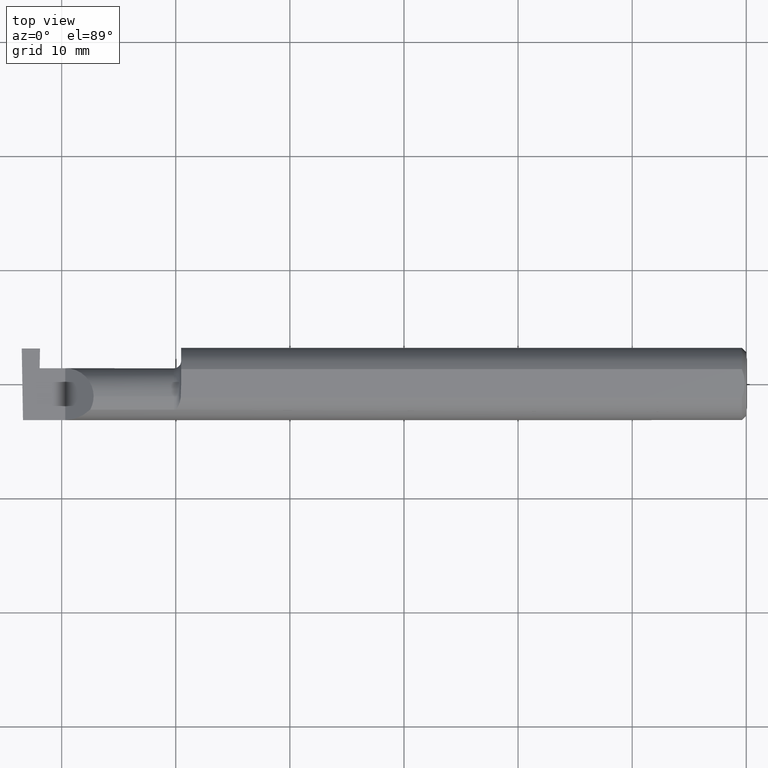
[diagram: clean part render]
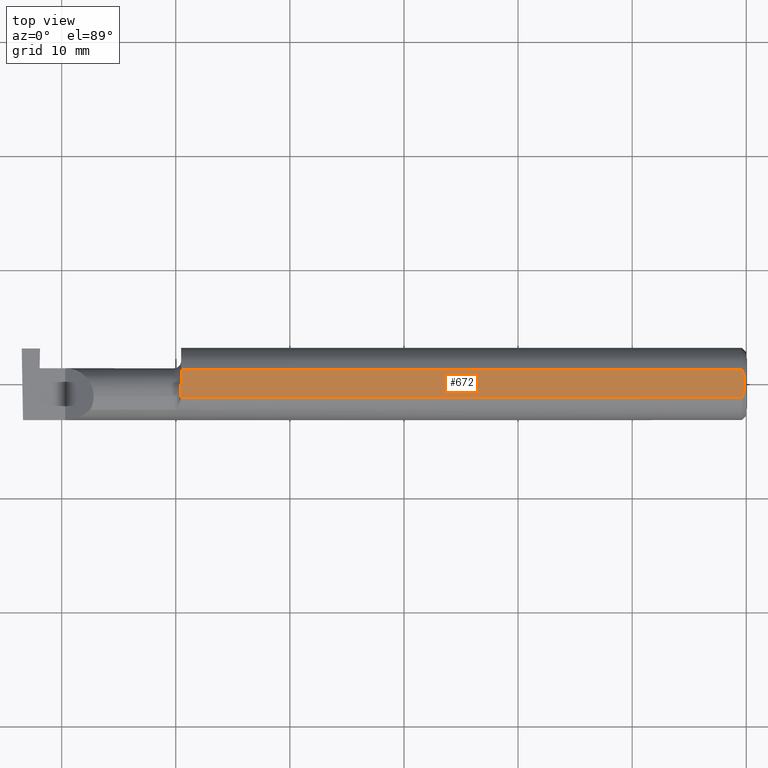
[diagram: same view with one face highlighted and labeled with its STEP entity id]
A machine part, top view. The second image highlights one B-rep face of the part: STEP entity #672.
In plain terms, the highlighted planar face has unit normal (0, 0, 1).
Its self-contained STEP definition (entity closure, byte-faithful):
#8 = CARTESIAN_POINT ( 'NONE',  ( -0.01499999999999987454, 0.04895916665957496944, 0.1148500000000000076 ) ) ;
#46 = PLANE ( 'NONE',  #467 ) ;
#77 = ORIENTED_EDGE ( 'NONE', *, *, #780, .F. ) ;
#82 = VERTEX_POINT ( 'NONE', #218 ) ;
#87 = DIRECTION ( 'NONE',  ( 0.000000000000000000, 0.000000000000000000, 1.000000000000000000 ) ) ;
#95 = LINE ( 'NONE', #588, #288 ) ;
#109 = CARTESIAN_POINT ( 'NONE',  ( -0.004999999999999990563, -1.358826068685392540E-17, 0.1148500000000000076 ) ) ;
#113 = EDGE_CURVE ( 'NONE', #82, #358, #750, .T. ) ;
#120 = VERTEX_POINT ( 'NONE', #8 ) ;
#124 = VERTEX_POINT ( 'NONE', #483 ) ;
#127 = CARTESIAN_POINT ( 'NONE',  ( -0.005947935873631213927, 0.01679708999422687907, 0.1148500000000000076 ) ) ;
#135 = VERTEX_POINT ( 'NONE', #225 ) ;
#145 = CARTESIAN_POINT ( 'NONE',  ( -1.950400391910593223, -0.01449986171080064334, 0.1148500000000000076 ) ) ;
#151 = CARTESIAN_POINT ( 'NONE',  ( -0.004999999999999963675, -0.008410771716546847077, 0.1148500000000000215 ) ) ;
#168 = CARTESIAN_POINT ( 'NONE',  ( -1.951362484150213072, -0.04555293709188903972, 0.1148500000000000076 ) ) ;
#177 = CARTESIAN_POINT ( 'NONE',  ( -1.950000000000000178, 0.0001781444078671173391, 0.1148500000000000076 ) ) ;
#189 = CARTESIAN_POINT ( 'NONE',  ( 0.000000000000000000, -0.04895916665957456698, 0.1148500000000000076 ) ) ;
#194 = ORIENTED_EDGE ( 'NONE', *, *, #262, .F. ) ;
#198 = VERTEX_POINT ( 'NONE', #109 ) ;
#214 = CARTESIAN_POINT ( 'NONE',  ( -1.950000000000000178, -0.1248500000000000165, 0.1148500000000000076 ) ) ;
#218 = CARTESIAN_POINT ( 'NONE',  ( -1.951365755776839572, -0.04385000000000001397, 0.1148500000000000076 ) ) ;
#225 = CARTESIAN_POINT ( 'NONE',  ( -1.951326891871145719, -0.04895916665872705742, 0.1148500000000000076 ) ) ;
#238 = B_SPLINE_CURVE_WITH_KNOTS ( 'NONE', 3,
 ( #446, #151, #268, #501, #265, #491 ),
 .UNSPECIFIED., .F., .F.,
 ( 4, 2, 4 ),
 ( 0.003658435455108829341, 0.004289327297787135992, 0.004920219140465443078 ),
 .UNSPECIFIED. ) ;
#245 = CARTESIAN_POINT ( 'NONE',  ( -0.01499999999999987454, 0.04895916665957496944, 0.1148500000000000076 ) ) ;
#259 = ORIENTED_EDGE ( 'NONE', *, *, #414, .F. ) ;
#262 = EDGE_CURVE ( 'NONE', #124, #135, #782, .T. ) ;
#265 = CARTESIAN_POINT ( 'NONE',  ( -0.01195732443765547791, -0.04120008761723505802, 0.1148500000000000076 ) ) ;
#268 = CARTESIAN_POINT ( 'NONE',  ( -0.005932194444709712640, -0.01671525318617311795, 0.1148499999999999938 ) ) ;
#276 = CARTESIAN_POINT ( 'NONE',  ( -1.951365755776839572, -0.04385000000000001397, 0.1148500000000000076 ) ) ;
#288 = VECTOR ( 'NONE', #458, 39.37007874015748143 ) ;
#296 = CARTESIAN_POINT ( 'NONE',  ( -0.01193974418109659125, 0.04115525648180411861, 0.1148500000000000215 ) ) ;
#300 = EDGE_LOOP ( 'NONE', ( #194, #259, #77, #743, #310, #604, #754 ) ) ;
#307 = CARTESIAN_POINT ( 'NONE',  ( -0.004999999999999962808, 0.008410227287019789166, 0.1148500000000000076 ) ) ;
#310 = ORIENTED_EDGE ( 'NONE', *, *, #701, .F. ) ;
#314 = VERTEX_POINT ( 'NONE', #720 ) ;
#332 = CARTESIAN_POINT ( 'NONE',  ( -1.951349474474288082, -0.04725615793095110095, 0.1148499999999999938 ) ) ;
#358 = VERTEX_POINT ( 'NONE', #177 ) ;
#364 = DIRECTION ( 'NONE',  ( -1.000000000000000000, 0.000000000000000000, 0.000000000000000000 ) ) ;
#401 = CARTESIAN_POINT ( 'NONE',  ( -1.951326891871145719, -0.04895916665872705742, 0.1148500000000000076 ) ) ;
#414 = EDGE_CURVE ( 'NONE', #198, #124, #238, .T. ) ;
#416 = CARTESIAN_POINT ( 'NONE',  ( -1.950000000000000178, 0.0001781444078671173391, 0.1148500000000000076 ) ) ;
#424 = CARTESIAN_POINT ( 'NONE',  ( -0.009410502401328735278, 0.03310661131402437007, 0.1148499999999999938 ) ) ;
#446 = CARTESIAN_POINT ( 'NONE',  ( -0.004999999999999990563, -1.358826068685392540E-17, 0.1148500000000000076 ) ) ;
#448 = VECTOR ( 'NONE', #490, 39.37007874015748143 ) ;
#458 = DIRECTION ( 'NONE',  ( 1.000000000000000000, -0.000000000000000000, -0.000000000000000000 ) ) ;
#467 = AXIS2_PLACEMENT_3D ( 'NONE', #560, #87, #752 ) ;
#478 = B_SPLINE_CURVE_WITH_KNOTS ( 'NONE', 3,
 ( #245, #296, #424, #127, #307, #532 ),
 .UNSPECIFIED., .F., .F.,
 ( 4, 2, 4 ),
 ( 0.002396733445051246140, 0.003027584450080037740, 0.003658435455108829341 ),
 .UNSPECIFIED. ) ;
#483 = CARTESIAN_POINT ( 'NONE',  ( -0.01499999999999999944, -0.04895916665957456698, 0.1148500000000000076 ) ) ;
#490 = DIRECTION ( 'NONE',  ( 0.000000000000000000, 1.000000000000000000, 0.000000000000000000 ) ) ;
#491 = CARTESIAN_POINT ( 'NONE',  ( -0.01499999999999999944, -0.04895916665957456698, 0.1148500000000000076 ) ) ;
#501 = CARTESIAN_POINT ( 'NONE',  ( -0.009415874254822409126, -0.03313958207962817981, 0.1148500000000000076 ) ) ;
#504 = LINE ( 'NONE', #214, #448 ) ;
#511 = CARTESIAN_POINT ( 'NONE',  ( -1.951365755776839572, -0.03650543323727820089, 0.1148500000000000215 ) ) ;
#532 = CARTESIAN_POINT ( 'NONE',  ( -0.004999999999999990563, -1.358826068685392540E-17, 0.1148500000000000076 ) ) ;
#546 = CARTESIAN_POINT ( 'NONE',  ( -1.951090261609496279, -0.02916889382056607125, 0.1148499999999999938 ) ) ;
#549 = EDGE_CURVE ( 'NONE', #314, #120, #95, .T. ) ;
#560 = CARTESIAN_POINT ( 'NONE',  ( -2.500000000000000000, -0.1248500000000000165, 0.1148500000000000076 ) ) ;
#570 = EDGE_CURVE ( 'NONE', #135, #82, #653, .T. ) ;
#588 = CARTESIAN_POINT ( 'NONE',  ( 0.000000000000000000, 0.04895916665957456698, 0.1148500000000000076 ) ) ;
#591 = FACE_OUTER_BOUND ( 'NONE', #300, .T. ) ;
#604 = ORIENTED_EDGE ( 'NONE', *, *, #113, .F. ) ;
#625 = VECTOR ( 'NONE', #364, 39.37007874015748143 ) ;
#651 = CARTESIAN_POINT ( 'NONE',  ( -1.951365755776839572, -0.04385000000000001397, 0.1148500000000000076 ) ) ;
#653 = B_SPLINE_CURVE_WITH_KNOTS ( 'NONE', 3,
 ( #401, #710, #332, #168, #714, #651 ),
 .UNSPECIFIED., .F., .F.,
 ( 4, 2, 4 ),
 ( 0.009355882855483669408, 0.009420520835881886212, 0.009485158816280104752 ),
 .UNSPECIFIED. ) ;
#672 = ADVANCED_FACE ( 'NONE', ( #591 ), #46, .T. ) ;
#701 = EDGE_CURVE ( 'NONE', #358, #314, #504, .T. ) ;
#710 = CARTESIAN_POINT ( 'NONE',  ( -1.951339737573316135, -0.04810771292169686159, 0.1148500000000000215 ) ) ;
#714 = CARTESIAN_POINT ( 'NONE',  ( -1.951365755776839794, -0.04470142088163425037, 0.1148500000000000076 ) ) ;
#720 = CARTESIAN_POINT ( 'NONE',  ( -1.950000000000000178, 0.04895916665957496944, 0.1148500000000000076 ) ) ;
#743 = ORIENTED_EDGE ( 'NONE', *, *, #549, .F. ) ;
#750 = B_SPLINE_CURVE_WITH_KNOTS ( 'NONE', 3,
 ( #276, #511, #546, #145, #763, #416 ),
 .UNSPECIFIED., .F., .F.,
 ( 4, 2, 4 ),
 ( 0.009485158816280104752, 0.01004274199597732752, 0.01060032517567455028 ),
 .UNSPECIFIED. ) ;
#752 = DIRECTION ( 'NONE',  ( -1.000000000000000000, 0.000000000000000000, 0.000000000000000000 ) ) ;
#754 = ORIENTED_EDGE ( 'NONE', *, *, #570, .F. ) ;
#763 = CARTESIAN_POINT ( 'NONE',  ( -1.949999999999999956, -0.007185469346090021976, 0.1148500000000000076 ) ) ;
#780 = EDGE_CURVE ( 'NONE', #120, #198, #478, .T. ) ;
#782 = LINE ( 'NONE', #189, #625 ) ;